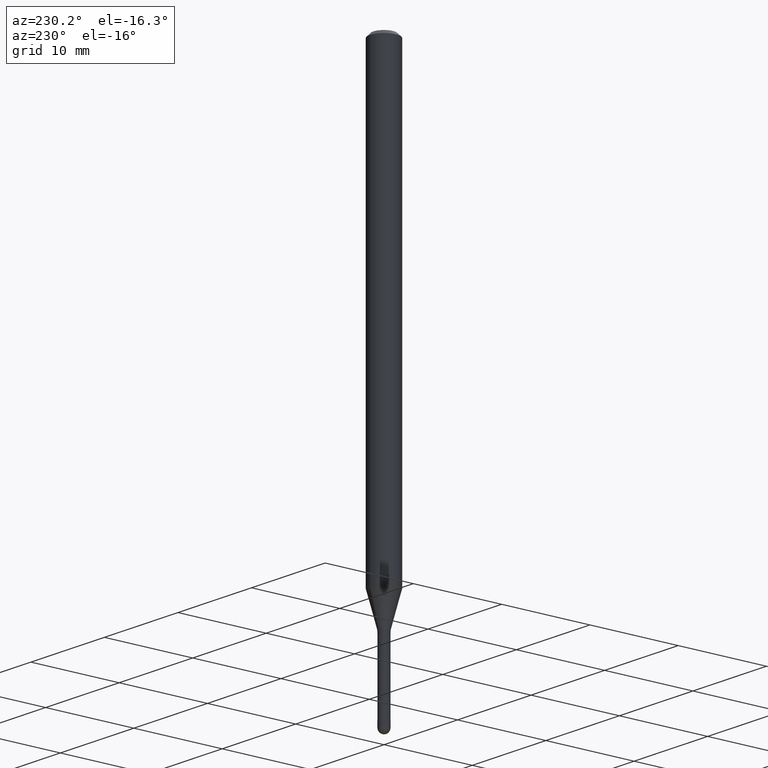
[diagram: clean part render]
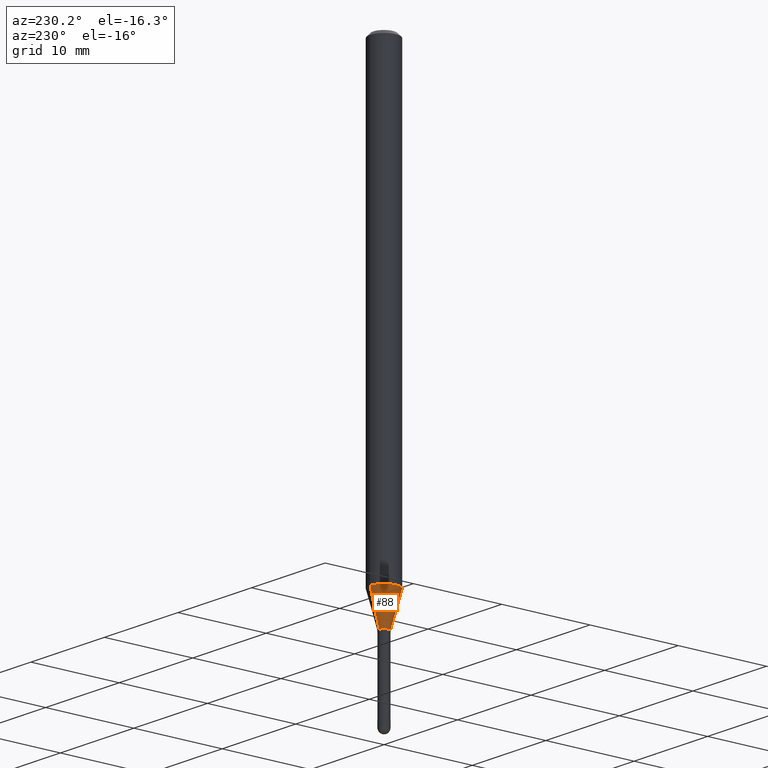
[diagram: same view with one face highlighted and labeled with its STEP entity id]
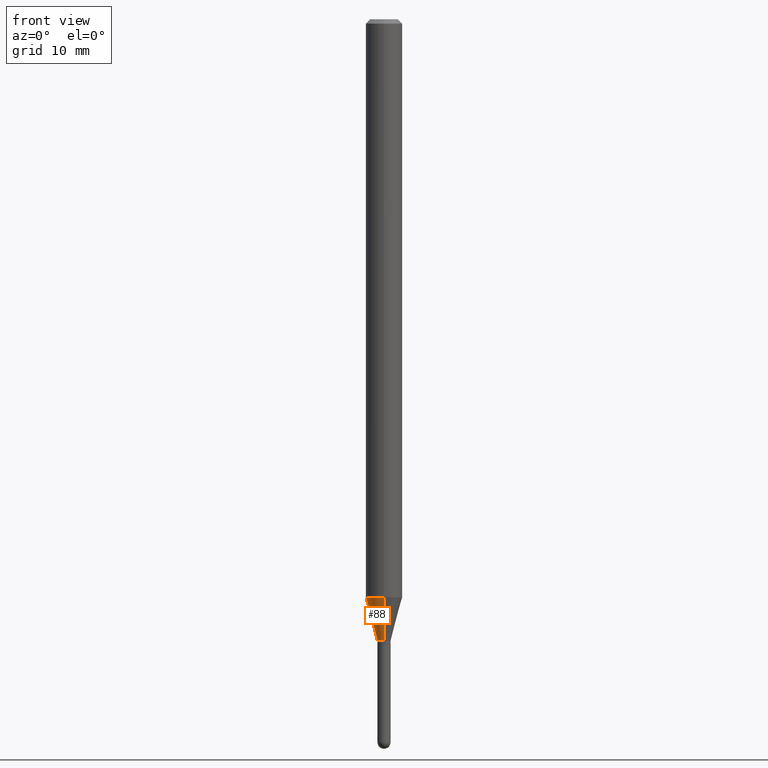
[diagram: same view with one face highlighted and labeled with its STEP entity id]
A machine part, auxiliary view. The second image highlights one B-rep face of the part: STEP entity #88.
A second angle (front view) of the same face is appended — the face is thin or edge-on in the first view.
In plain terms, the highlighted conical surface has half-angle 15 deg.
Its self-contained STEP definition (entity closure, byte-faithful):
#29 = CIRCLE ( 'NONE', #490, 0.06250000000000000000 ) ;
#38 = VERTEX_POINT ( 'NONE', #365 ) ;
#62 = DIRECTION ( 'NONE',  ( -6.982962677686266711E-15, -1.000000000000000000, 0.000000000000000000 ) ) ;
#75 = AXIS2_PLACEMENT_3D ( 'NONE', #183, #336, #493 ) ;
#88 = ADVANCED_FACE ( 'NONE', ( #338 ), #484, .T. ) ;
#102 = ORIENTED_EDGE ( 'NONE', *, *, #400, .F. ) ;
#141 = DIRECTION ( 'NONE',  ( -1.807323732225331717E-15, -0.2588190451025184080, 0.9659258262890689783 ) ) ;
#145 = CARTESIAN_POINT ( 'NONE',  ( 4.843688895711374227E-29, -6.915776021999746285E-15, -1.980717967697243731 ) ) ;
#169 = CIRCLE ( 'NONE', #75, 0.02249999999999964875 ) ;
#178 = EDGE_CURVE ( 'NONE', #451, #38, #232, .T. ) ;
#183 = CARTESIAN_POINT ( 'NONE',  ( 5.208746280955738477E-29, -7.437001717102136463E-15, -2.129999999999999449 ) ) ;
#197 = LINE ( 'NONE', #347, #501 ) ;
#221 = ORIENTED_EDGE ( 'NONE', *, *, #411, .F. ) ;
#224 = DIRECTION ( 'NONE',  ( 1.839019923739601893E-15, 0.2588190451025252359, 0.9659258262890670910 ) ) ;
#225 = VERTEX_POINT ( 'NONE', #472 ) ;
#232 = LINE ( 'NONE', #374, #368 ) ;
#264 = CARTESIAN_POINT ( 'NONE',  ( 5.208746280955738477E-29, -7.437001717102136463E-15, -2.129999999999999449 ) ) ;
#298 = ORIENTED_EDGE ( 'NONE', *, *, #496, .T. ) ;
#315 = AXIS2_PLACEMENT_3D ( 'NONE', #264, #503, #62 ) ;
#332 = ORIENTED_EDGE ( 'NONE', *, *, #178, .T. ) ;
#336 = DIRECTION ( 'NONE',  ( -2.445420789181098238E-29, 3.491550101925886841E-15, 1.000000000000000000 ) ) ;
#338 = FACE_OUTER_BOUND ( 'NONE', #477, .T. ) ;
#347 = CARTESIAN_POINT ( 'NONE',  ( 1.598721155460720862E-16, 0.02249999999999221373, -2.129999999999999449 ) ) ;
#365 = CARTESIAN_POINT ( 'NONE',  ( -4.364351673553434010E-16, -0.06250000000000693889, -1.980717967697243287 ) ) ;
#368 = VECTOR ( 'NONE', #141, 39.37007874015748854 ) ;
#374 = CARTESIAN_POINT ( 'NONE',  ( -1.571166602478864611E-16, -0.02250000000000708378, -2.129999999999999449 ) ) ;
#400 = EDGE_CURVE ( 'NONE', #225, #462, #197, .T. ) ;
#411 = EDGE_CURVE ( 'NONE', #462, #38, #29, .T. ) ;
#413 = DIRECTION ( 'NONE',  ( -2.445420789181098238E-29, 3.491550101925886841E-15, 1.000000000000000000 ) ) ;
#451 = VERTEX_POINT ( 'NONE', #497 ) ;
#462 = VERTEX_POINT ( 'NONE', #465 ) ;
#465 = CARTESIAN_POINT ( 'NONE',  ( 4.440892098501108353E-16, 0.06249999999999306804, -1.980717967697243953 ) ) ;
#468 = DIRECTION ( 'NONE',  ( -6.982962677686265922E-15, -1.000000000000000000, 4.370956789862821150E-15 ) ) ;
#472 = CARTESIAN_POINT ( 'NONE',  ( 3.019806626980916580E-16, 0.02249999999999221373, -2.129999999999999449 ) ) ;
#477 = EDGE_LOOP ( 'NONE', ( #102, #298, #332, #221 ) ) ;
#484 = CONICAL_SURFACE ( 'NONE', #315, 0.02249999999999964875, 0.2617993877991505181 ) ;
#490 = AXIS2_PLACEMENT_3D ( 'NONE', #145, #413, #468 ) ;
#493 = DIRECTION ( 'NONE',  ( -6.982962677686266711E-15, -1.000000000000000000, 0.000000000000000000 ) ) ;
#496 = EDGE_CURVE ( 'NONE', #225, #451, #169, .T. ) ;
#497 = CARTESIAN_POINT ( 'NONE',  ( -1.571166602478864611E-16, -0.02250000000000708378, -2.129999999999999449 ) ) ;
#501 = VECTOR ( 'NONE', #224, 39.37007874015748854 ) ;
#503 = DIRECTION ( 'NONE',  ( -2.445420789181098238E-29, 3.491550101925886841E-15, 1.000000000000000000 ) ) ;